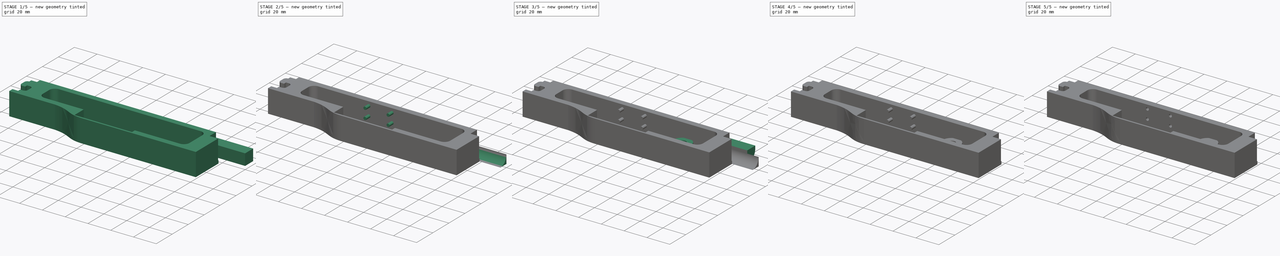
[diagram: build sequence overview — one tinted view per stage of 5, left to right]
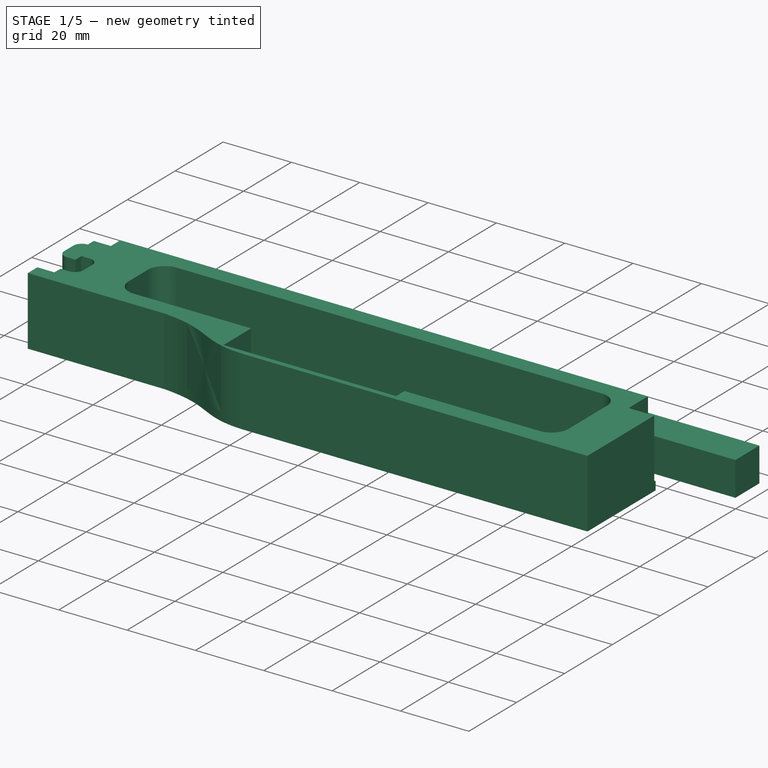
[diagram: stage 1 of 5 — iso view after this stage's code; geometry added in this stage tinted green]
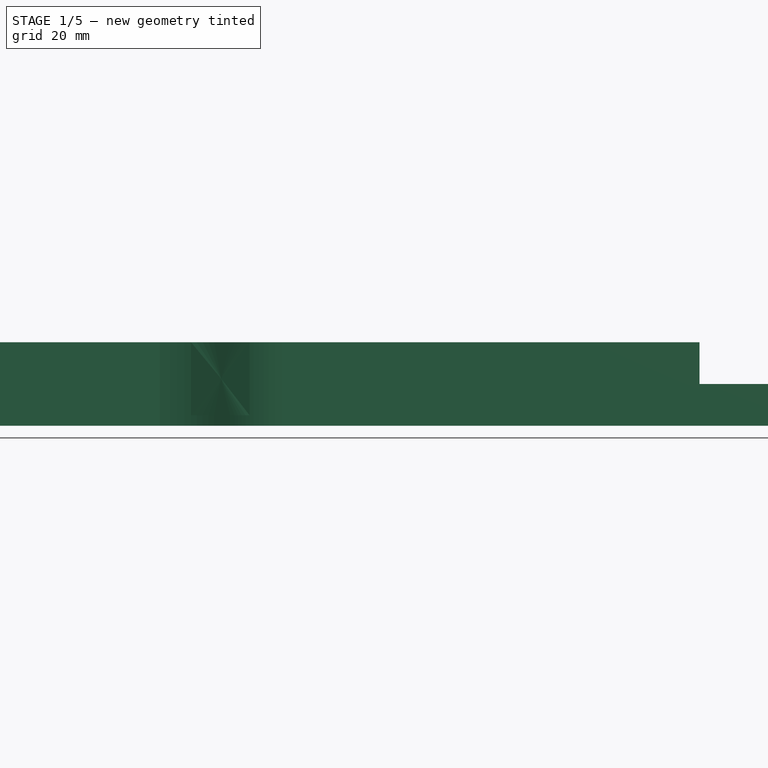
[diagram: stage 1 of 5 — front view after this stage's code; geometry added in this stage tinted green]
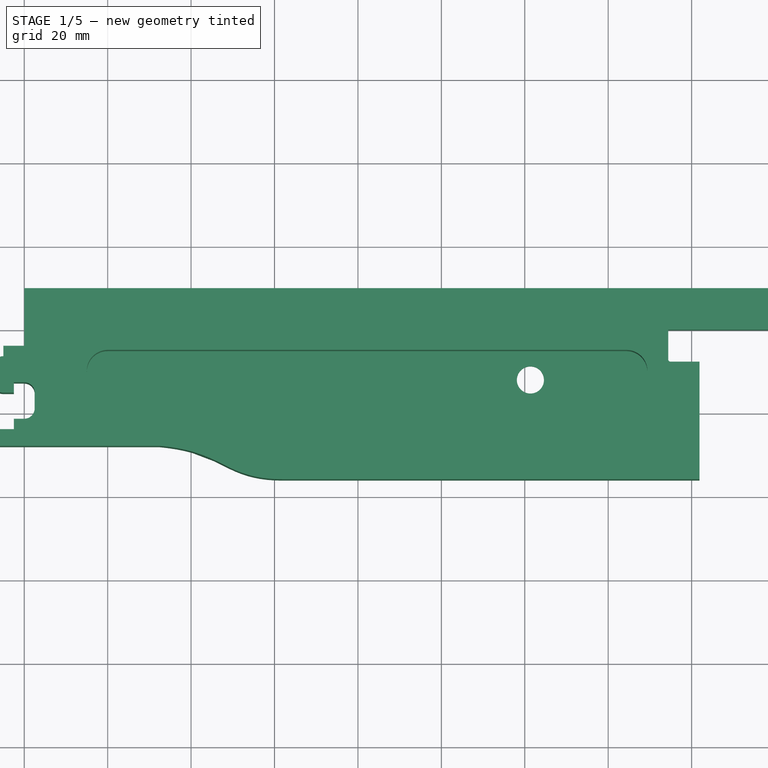
[diagram: stage 1 of 5 — top view after this stage's code; geometry added in this stage tinted green]
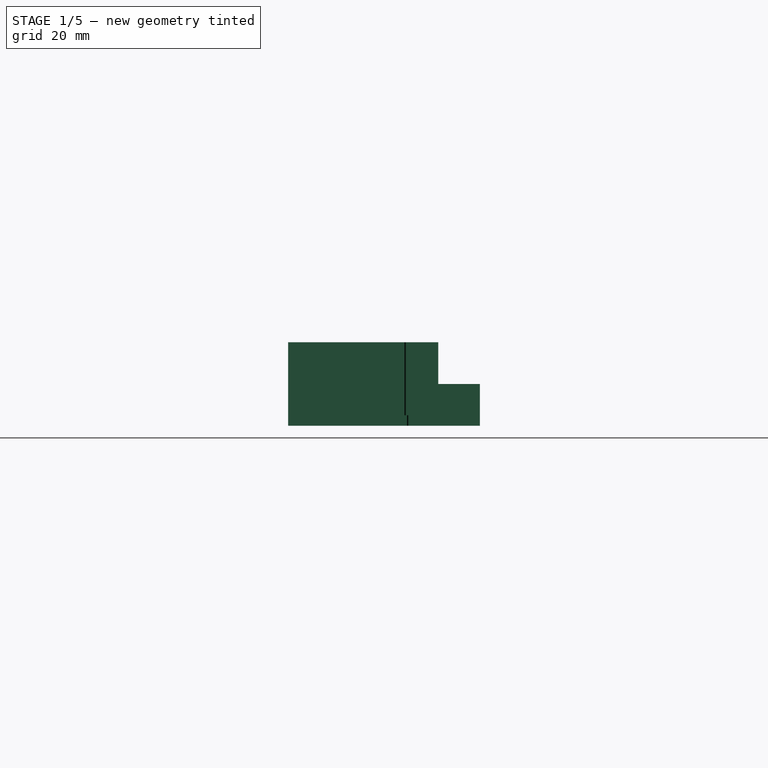
[diagram: stage 1 of 5 — right view after this stage's code; geometry added in this stage tinted green]
FCSTD DOCUMENT  (FreeCAD 0.19R0.19.2)
Label: v0_24
License: All rights reserved
LicenseURL: http://en.wikipedia.org/wiki/All_rights_reserved
objects: Sketcher::SketchObject×6, Part::Cut×6, Part::Extrusion×5, Part::Box×4, Part::Fillet×2, Part::MultiFuse×2, Part::Revolution×1
note: 26 computed .brp shape members not serialized (recipe doc carries the construction recipe); baked Part::Feature solids carry a one-line shape summary decoded from their .brp

FEATURE [Sketcher::SketchObject] Sketch
  FullyConstrained = true
  sketch-geometry (25):
    g0: LineSegment StartX=0 StartY=0 StartZ=0 EndX=154.4 EndY=0 EndZ=0
    g1: Circle CenterX=121.35 CenterY=-11.9 CenterZ=0 NormalX=0 NormalY=0 NormalZ=1 AngleXU=0 Radius=3.25
    g2: LineSegment StartX=154.4 StartY=0 StartZ=0 EndX=154.4 EndY=-7.6 EndZ=0
    g3: LineSegment StartX=154.9 StartY=-8.1 StartZ=0 EndX=161.9 EndY=-8.1 EndZ=0
    g4: ArcOfCircle CenterX=154.9 CenterY=-7.6 CenterZ=0 NormalX=0 NormalY=0 NormalZ=1 AngleXU=0 Radius=0.5 StartAngle=3.14159 EndAngle=4.71239
    g5: LineSegment StartX=161.9 StartY=-8.1 StartZ=0 EndX=161.9 EndY=-34.2 EndZ=0
    g6: LineSegment StartX=0 StartY=0 StartZ=0 EndX=0 EndY=-3.1 EndZ=0
    g7: LineSegment StartX=-7.5 StartY=-23.1 StartZ=0 EndX=-7.5 EndY=-26.2 EndZ=0
    g8: LineSegment StartX=-5 StartY=-3.1 StartZ=0 EndX=0 EndY=-3.1 EndZ=0
    g9: LineSegment StartX=-5 StartY=-3.1 StartZ=0 EndX=-5 EndY=-5.6 EndZ=0
    g10: LineSegment StartX=-7.5 StartY=-8.1 StartZ=0 EndX=-7.5 EndY=-11.85 EndZ=0
    g11: ArcOfCircle CenterX=-5 CenterY=-8.1 CenterZ=0 NormalX=0 NormalY=0 NormalZ=1 AngleXU=0 Radius=2.5 StartAngle=1.5708 EndAngle=3.14159
    g12: LineSegment StartX=-5 StartY=-14.35 StartZ=0 EndX=-2.5 EndY=-14.35 EndZ=0
    g13: ArcOfCircle CenterX=-5 CenterY=-11.85 CenterZ=0 NormalX=0 NormalY=0 NormalZ=1 AngleXU=0 Radius=2.5 StartAngle=3.14159 EndAngle=4.71239
    g14: LineSegment StartX=-2.5 StartY=-14.35 StartZ=0 EndX=-2.5 EndY=-11.85 EndZ=0
    g15: LineSegment StartX=-2.5 StartY=-11.85 StartZ=0 EndX=1.492e-13 EndY=-11.85 EndZ=0
    g16: ArcOfCircle CenterX=1.492e-13 CenterY=-14.35 CenterZ=0 NormalX=0 NormalY=0 NormalZ=1 AngleXU=0 Radius=2.5 StartAngle=8e-16 EndAngle=1.5708
    g17: LineSegment StartX=2.5 StartY=-14.35 StartZ=0 EndX=2.5 EndY=-18.1 EndZ=0
    g18: ArcOfCircle CenterX=1.474e-13 CenterY=-18.1 CenterZ=0 NormalX=0 NormalY=0 NormalZ=1 AngleXU=0 Radius=2.5 StartAngle=4.71239 EndAngle=6.28319
    g19: LineSegment StartX=-2.5 StartY=-20.6 StartZ=0 EndX=1.47e-13 EndY=-20.6 EndZ=0
    g20: LineSegment StartX=-2.5 StartY=-20.6 StartZ=0 EndX=-2.5 EndY=-23.1 EndZ=0
    g21: LineSegment StartX=-7.5 StartY=-23.1 StartZ=0 EndX=-2.5 EndY=-23.1 EndZ=0
    g22: LineSegment StartX=32.5209 StartY=-26.2 StartZ=0 EndX=-7.5 EndY=-26.2 EndZ=0
    g23: BSplineCurve PolesCount=5 KnotsCount=3 Degree=3 IsPeriodic=0
    g24: LineSegment StartX=61.85 StartY=-34.2 StartZ=0 EndX=161.9 EndY=-34.2 EndZ=0
  constraints (59):
    c: PointOnObject(g0,g-2)
    c: Horizontal(g0)
    c: Distance(g0) = 154.4
    c: DistanceY(g-1,g0) = 0
    c: Block(g1)
    c: Vertical(g2)
    c: Distance(g2) = 7.6
    c: Coincident(g2,g0)
    c: Horizontal(g3)
    c: Tangent(g3,g4)
    c: Tangent(g3,g4,g3) = -1.5708
    c: Block(g4)
    c: Block(g3)
    c: Vertical(g5)
    c: Distance(g5) = 26.1
    c: Block(g5)
    c: Vertical(g6)
    c: Distance(g6) = 3.1
    c: Coincident(g6,g0)
    c: Vertical(g7)
    c: Distance(g7) = 3.1
    c: Horizontal(g8)
    c: Vertical(g9)
    c: Coincident(g9,g8)
    c: Vertical(g10)
    c: Coincident(g11,g9)
    c: Block(g11)
    c: Coincident(g10,g11)
    c: Horizontal(g12)
    c: Coincident(g13,g10)
    c: Block(g13)
    c: Block(g12)
    c: Vertical(g14)
    c: Coincident(g14,g12)
    c: Horizontal(g15)
    c: Coincident(g15,g14)
    c: Coincident(g16,g15)
    c: Vertical(g17)
    c: Block(g16)
    c: Coincident(g17,g16)
    c: Coincident(g18,g17)
    c: Block(g18)
    c: Horizontal(g19)
    c: Coincident(g19,g18)
    c: Vertical(g20)
    c: Coincident(g20,g19)
    c: Horizontal(g21)
    c: Coincident(g21,g20)
    c: Coincident(g21,g7)
    c: Block(g20)
    c: Block(g7)
    c: Block(g8)
    c: Horizontal(g24)
    c: Coincident(g23,g24)
    c: Horizontal(g22)
    c: Coincident(g22,g23)
    c: Block(g23)
    c: Block(g22)
    c: Block(g24)
FEATURE [Part::Extrusion] Extrude
  Base = -> Sketch
  Dir = (0,0,1)
  DirMode = 2
  FaceMakerClass = Part::FaceMakerBullseye
  LengthFwd = 2.5
  LengthRev = 0
  Solid = true
  Symmetric = false
FEATURE [Sketcher::SketchObject] Sketch001
  FullyConstrained = true
  sketch-geometry (54):
    g0: ArcOfCircle CenterX=144.4 CenterY=-10 CenterZ=0 NormalX=0 NormalY=0 NormalZ=1 AngleXU=0 Radius=5 StartAngle=0 EndAngle=1.5708
    g1: LineSegment StartX=20 StartY=-23 StartZ=0 EndX=54.35 EndY=-23 EndZ=0
    g2: ArcOfCircle CenterX=20 CenterY=-18 CenterZ=0 NormalX=0 NormalY=0 NormalZ=1 AngleXU=0 Radius=5 StartAngle=3.14159 EndAngle=4.71239
    g3: ArcOfCircle CenterX=20 CenterY=-10 CenterZ=0 NormalX=0 NormalY=0 NormalZ=1 AngleXU=0 Radius=5 StartAngle=1.5708 EndAngle=3.14159
    g4: LineSegment StartX=15 StartY=-10 StartZ=0 EndX=15 EndY=-18 EndZ=0
    g5: LineSegment StartX=32.5209 StartY=-26.2 StartZ=0 EndX=-7.49911 EndY=-26.2 EndZ=0
    g6: BSplineCurve PolesCount=5 KnotsCount=3 Degree=3 IsPeriodic=0
    g7: LineSegment StartX=61.85 StartY=-34.2 StartZ=0 EndX=161.9 EndY=-34.2 EndZ=0
    g8: LineSegment StartX=161.9 StartY=-34.2 StartZ=0 EndX=161.9 EndY=-8.1 EndZ=0
    g9: ArcOfCircle CenterX=144.4 CenterY=-24.1 CenterZ=0 NormalX=0 NormalY=0 NormalZ=1 AngleXU=0 Radius=5 StartAngle=4.71239 EndAngle=6.28319
    g10: LineSegment StartX=104.85 StartY=-29.1 StartZ=0 EndX=144.4 EndY=-29.1 EndZ=0
    g11: LineSegment StartX=0 StartY=0 StartZ=0 EndX=0 EndY=-3.1 EndZ=0
    g12: LineSegment StartX=-7.49911 StartY=-23.1 StartZ=0 EndX=-7.49911 EndY=-26.2 EndZ=0
    g13: LineSegment StartX=-4.99911 StartY=-3.1 StartZ=0 EndX=0.000891 EndY=-3.1 EndZ=0
    g14: LineSegment StartX=-4.99911 StartY=-3.1 StartZ=0 EndX=-4.99911 EndY=-5.6 EndZ=0
    g15: LineSegment StartX=-7.49911 StartY=-8.1 StartZ=0 EndX=-7.49911 EndY=-11.85 EndZ=0
    g16: ArcOfCircle CenterX=-4.99911 CenterY=-8.1 CenterZ=0 NormalX=0 NormalY=0 NormalZ=1 AngleXU=0 Radius=2.5 StartAngle=1.5708 EndAngle=3.14159
    g17: LineSegment StartX=-4.99911 StartY=-14.35 StartZ=0 EndX=-2.49911 EndY=-14.35 EndZ=0
    g18: ArcOfCircle CenterX=-4.99911 CenterY=-11.85 CenterZ=0 NormalX=0 NormalY=0 NormalZ=1 AngleXU=0 Radius=2.5 StartAngle=3.14159 EndAngle=4.71239
    g19: LineSegment StartX=-2.49911 StartY=-14.35 StartZ=0 EndX=-2.49911 EndY=-11.85 EndZ=0
    g20: LineSegment StartX=-2.49911 StartY=-11.85 StartZ=0 EndX=0.000891 EndY=-11.85 EndZ=0
    g21: ArcOfCircle CenterX=0.000891 CenterY=-14.35 CenterZ=0 NormalX=0 NormalY=0 NormalZ=1 AngleXU=0 Radius=2.5 StartAngle=8e-16 EndAngle=1.5708
    g22: LineSegment StartX=2.50089 StartY=-14.35 StartZ=0 EndX=2.50089 EndY=-18.1 EndZ=0
    g23: ArcOfCircle CenterX=0.000891 CenterY=-18.1 CenterZ=0 NormalX=0 NormalY=0 NormalZ=1 AngleXU=0 Radius=2.5 StartAngle=4.71239 EndAngle=6.28319
    g24: LineSegment StartX=-2.49911 StartY=-20.6 StartZ=0 EndX=0.000891 EndY=-20.6 EndZ=0
    g25: LineSegment StartX=-2.49911 StartY=-20.6 StartZ=0 EndX=-2.49911 EndY=-23.1 EndZ=0
    g26: LineSegment StartX=-7.49911 StartY=-23.1 StartZ=0 EndX=-2.49911 EndY=-23.1 EndZ=0
    g27: LineSegment StartX=20 StartY=-5 StartZ=0 EndX=54.35 EndY=-5 EndZ=0
    g28: LineSegment StartX=60.35 StartY=-32.2 StartZ=0 EndX=98.85 EndY=-32.2 EndZ=0
    g29: LineSegment StartX=104.85 StartY=-29.1 StartZ=0 EndX=104.85 EndY=-29.2 EndZ=0
    g30: LineSegment StartX=54.35 StartY=-23 StartZ=0 EndX=54.35 EndY=-29.2 EndZ=0
    g31: Circle CenterX=104.85 CenterY=-29.2 CenterZ=0 NormalX=0 NormalY=0 NormalZ=1 AngleXU=0 Radius=1
    g32: Circle CenterX=104.85 CenterY=-32.2 CenterZ=0 NormalX=0 NormalY=0 NormalZ=1 AngleXU=0 Radius=1
    g33: Circle CenterX=98.85 CenterY=-32.2 CenterZ=0 NormalX=0 NormalY=0 NormalZ=1 AngleXU=0 Radius=1
    g34: BSplineCurve PolesCount=3 KnotsCount=2 Degree=2 IsPeriodic=0
    g35: GeomPoint X=104.85 Y=-29.2 Z=0
    g36: GeomPoint X=98.85 Y=-32.2 Z=0
    g37: Circle CenterX=54.35 CenterY=-29.2 CenterZ=0 NormalX=0 NormalY=0 NormalZ=1 AngleXU=0 Radius=1
    g38: Circle CenterX=54.35 CenterY=-32.2 CenterZ=0 NormalX=0 NormalY=0 NormalZ=1 AngleXU=0 Radius=1
    g39: Circle CenterX=60.35 CenterY=-32.2 CenterZ=0 NormalX=0 NormalY=0 NormalZ=1 AngleXU=0 Radius=1
    g40: BSplineCurve PolesCount=3 KnotsCount=2 Degree=2 IsPeriodic=0
    g41: GeomPoint X=54.35 Y=-29.2 Z=0
    g42: GeomPoint X=60.35 Y=-32.2 Z=0
    g43: LineSegment StartX=104.85 StartY=-5 StartZ=0 EndX=144.4 EndY=-5 EndZ=0
    g44: LineSegment StartX=54.35 StartY=-5 StartZ=0 EndX=54.35 EndY=-4.1 EndZ=0
    g45: ArcOfCircle CenterX=56.35 CenterY=-4.1 CenterZ=0 NormalX=0 NormalY=0 NormalZ=1 AngleXU=0 Radius=2 StartAngle=1.5708 EndAngle=3.14159
    g46: LineSegment StartX=104.85 StartY=-5 StartZ=0 EndX=104.85 EndY=-4.1 EndZ=0
    g47: ArcOfCircle CenterX=102.85 CenterY=-4.1 CenterZ=0 NormalX=0 NormalY=0 NormalZ=1 AngleXU=0 Radius=2 StartAngle=1e-16 EndAngle=1.5708
    g48: LineSegment StartX=56.35 StartY=-2.1 StartZ=0 EndX=102.85 EndY=-2.1 EndZ=0
    g49: LineSegment StartX=0 StartY=0 StartZ=0 EndX=154.4 EndY=0 EndZ=0
    g50: LineSegment StartX=149.4 StartY=-10 StartZ=0 EndX=149.4 EndY=-24.1 EndZ=0
    g51: LineSegment StartX=154.4 StartY=0 StartZ=0 EndX=154.4 EndY=-7.6 EndZ=0
    g52: LineSegment StartX=154.9 StartY=-8.1 StartZ=0 EndX=161.9 EndY=-8.1 EndZ=0
    g53: ArcOfCircle CenterX=154.9 CenterY=-7.6 CenterZ=0 NormalX=0 NormalY=0 NormalZ=1 AngleXU=0 Radius=0.5 StartAngle=3.14159 EndAngle=4.71239
  constraints (123):
    c: PointOnObject(g11,g-2)
    c: DistanceY(g-1,g11) = 0
    c: Block(g0)
    c: Horizontal(g1)
    c: Block(g2)
    c: Block(g1)
    c: Block(g3)
    c: Coincident(g4,g3)
    c: Coincident(g4,g2)
    c: Horizontal(g7)
    c: Coincident(g6,g7)
    c: Horizontal(g5)
    c: Coincident(g5,g6)
    c: Block(g6)
    c: Vertical(g8)
    c: Coincident(g8,g7)
    c: Block(g9)
    c: Horizontal(g10)
    c: Coincident(g10,g9)
    c: Block(g10)
    c: Distance(g5) = 40.02
    c: Vertical(g11)
    c: Distance(g11) = 3.1
    c: Vertical(g12)
    c: Distance(g12) = 3.1
    c: Coincident(g12,g5)
    c: Horizontal(g13)
    c: Vertical(g14)
    c: Coincident(g14,g13)
    c: Vertical(g15)
    c: Coincident(g16,g14)
    c: Block(g16)
    c: Horizontal(g17)
    c: Block(g18)
    c: Block(g17)
    c: Vertical(g19)
    c: Coincident(g19,g17)
    c: Horizontal(g20)
    c: Coincident(g20,g19)
    c: Coincident(g21,g20)
    c: Vertical(g22)
    c: Block(g21)
    c: Block(g23)
    c: Horizontal(g24)
    c: Coincident(g24,g23)
    c: Vertical(g25)
    c: Coincident(g25,g24)
    c: Horizontal(g26)
    c: Coincident(g26,g25)
    c: Coincident(g26,g12)
    c: Equal(g13,g26)
    c: Equal(g25,g14)
    c: Block(g24)
    c: Block(g15)
    c: Block(g22)
    c: Block(g26)
    c: Block(g25)
    c: Horizontal(g27)
    c: Coincident(g27,g3)
    c: Horizontal(g28)
    c: Distance(g28) = 38.5
    c: Vertical(g29)
    c: Distance(g29) = 0.1
    c: Coincident(g29,g10)
    c: Vertical(g30)
    c: Distance(g30) = 6.2
    c: Coincident(g30,g1)
    c: Coincident(g34,g29)
    c: Weight(g31) = 1
    c: Equal(g31,g32)
    c: Equal(g31,g33)
    c: Coincident(g34,g28)
    c: InternalAlignment(g31,g34)
    c: InternalAlignment(g32,g34)
    c: InternalAlignment(g33,g34)
    c: InternalAlignment(g35,g34)
    c: InternalAlignment(g36,g34)
    c: Block(g34)
    c: Block(g28)
    c: Weight(g37) = 1
    c: Equal(g37,g38)
    c: Equal(g37,g39)
    c: Coincident(g40,g28)
    c: InternalAlignment(g37,g40)
    c: InternalAlignment(g38,g40)
    c: InternalAlignment(g39,g40)
    c: InternalAlignment(g41,g40)
    c: InternalAlignment(g42,g40)
    c: Block(g40)
    c: Coincident(g43,g0)
    c: Distance(g43) = 39.55
    c: Vertical(g44)
    c: Distance(g44) = 0.9
    c: Distance(g27) = 34.35
    c: Block(g27)
    c: Block(g45)
    c: Block(g44)
    c: Vertical(g46)
    c: Block(g43)
    c: Distance(g46) = 0.9
    c: Coincident(g47,g46)
    c: Block(g47)
    c: Block(g46)
    c: Horizontal(g48)
    c: Coincident(g48,g45)
    c: Coincident(g48,g47)
    c: Horizontal(g49)
    c: Coincident(g49,g11)
    c: Vertical(g50)
    c: Coincident(g50,g0)
    c: Coincident(g50,g9)
    c: Block(g50)
    c: Block(g7)
    c: Block(g49)
    c: Vertical(g51)
    c: Distance(g51) = 7.6
    c: Coincident(g51,g49)
    c: Horizontal(g52)
    c: Distance(g52) = 7
    c: Coincident(g53,g51)
    c: Coincident(g53,g52)
    c: Block(g53)
    c: Block(g8)
FEATURE [Part::Extrusion] Extrude001
  Base = -> Sketch001
  Dir = (0,0,1)
  DirMode = 2
  FaceMakerClass = Part::FaceMakerBullseye
  LengthFwd = 20
  LengthRev = 0
  Solid = true
  Symmetric = false
FEATURE [Part::Box] Box003  label="Cube003"
  AttacherType = Attacher::AttachEngine3D
  Height = 10
  Length = 180
  Width = 10
FEATURE [Part::MultiFuse] Fusion
  Shapes = -> [Extrude001,Extrude]
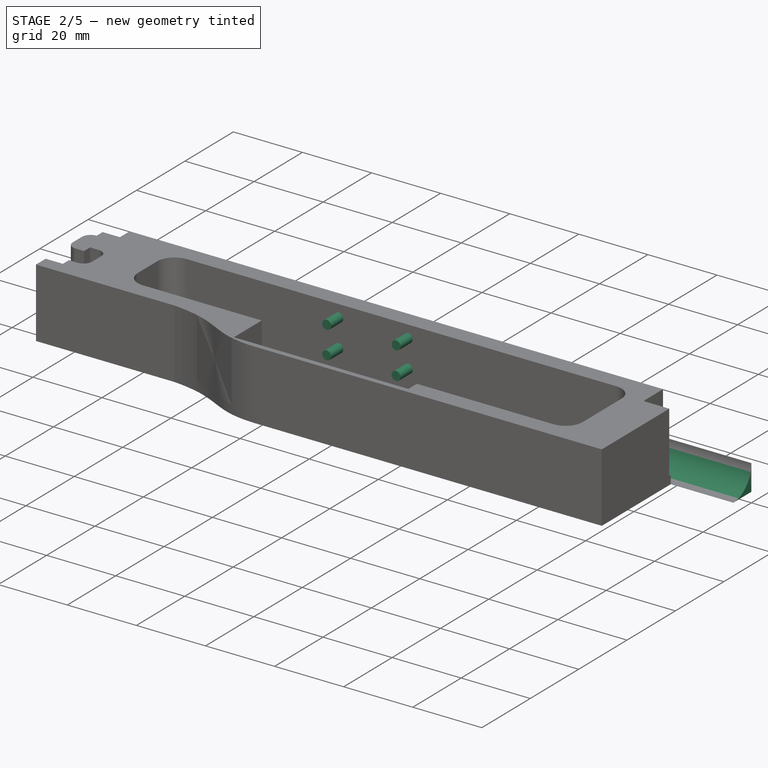
[diagram: stage 2 of 5 — iso view after this stage's code; geometry added in this stage tinted green]
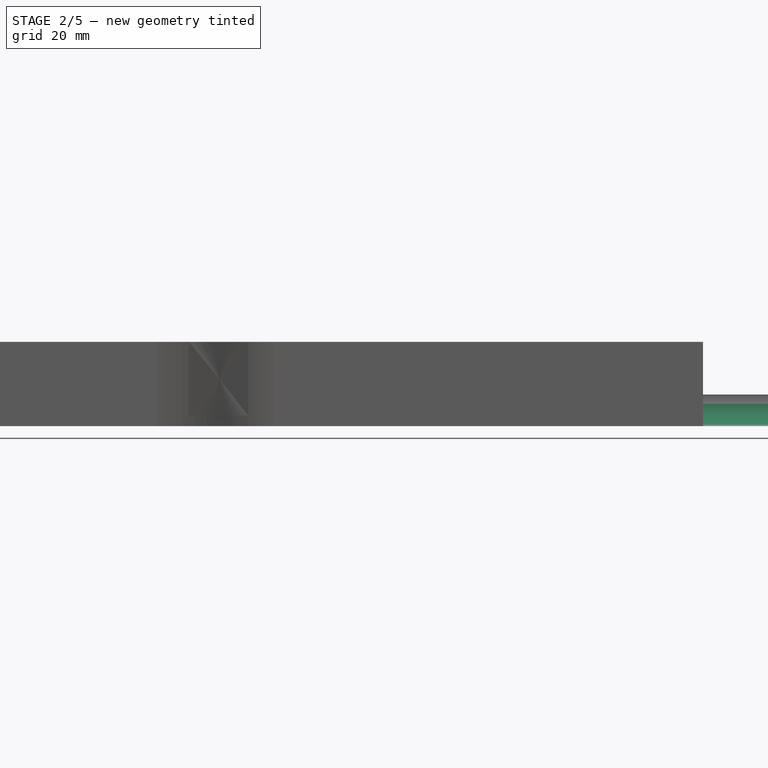
[diagram: stage 2 of 5 — front view after this stage's code; geometry added in this stage tinted green]
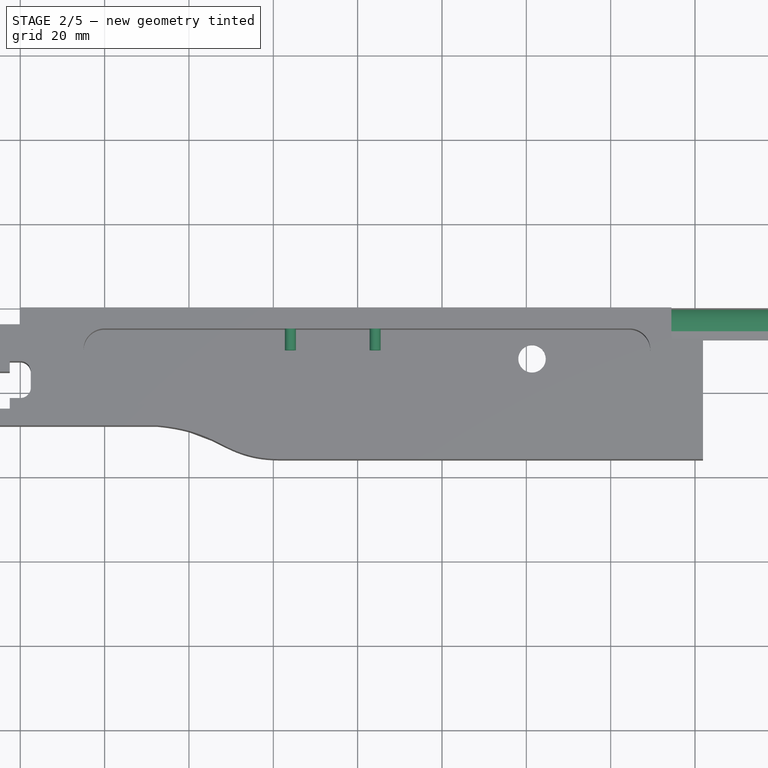
[diagram: stage 2 of 5 — top view after this stage's code; geometry added in this stage tinted green]
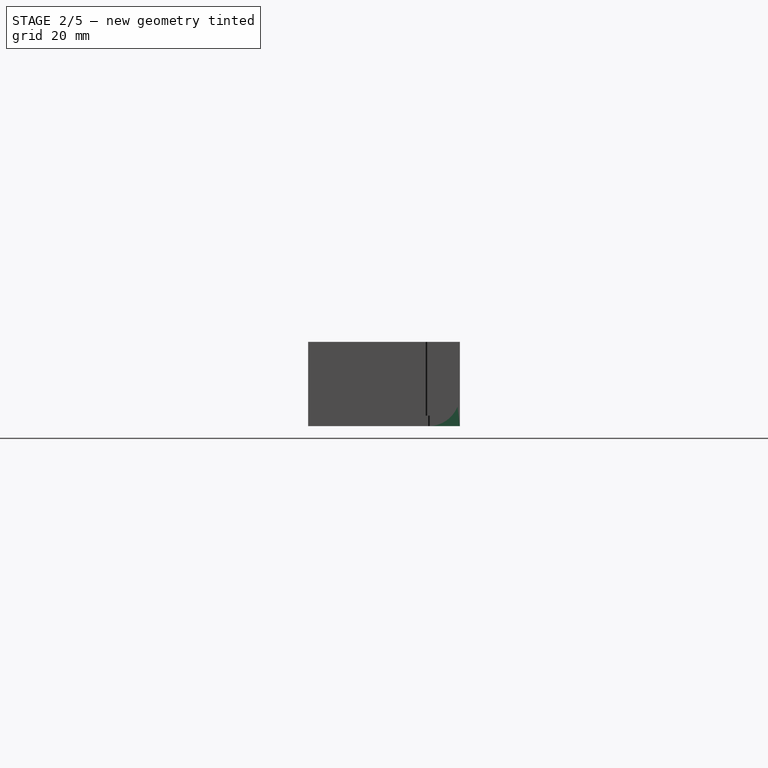
[diagram: stage 2 of 5 — right view after this stage's code; geometry added in this stage tinted green]
FEATURE [Part::Box] Box002  label="Cube002"
  AttacherType = Attacher::AttachEngine3D
  Height = 10
  Length = 180
  Width = 10
FEATURE [Part::Fillet] Fillet001
  Base = -> Box002
  Edges = 1 edges r=7.5: [Edge11]
FEATURE [Part::Extrusion] Extrude004
  Base = -> Sketch005
  Dir = (0,-1,9e-16)
  DirMode = 2
  FaceMakerClass = Part::FaceMakerBullseye
  LengthFwd = 10
  LengthRev = 0
  Solid = true
  Symmetric = false
FEATURE [Part::Cut] Cut002
  Base = -> Box003
  Placement = pos=(0,-10,0) rot=(0,0,1;0rad)
  Tool = -> Fillet001
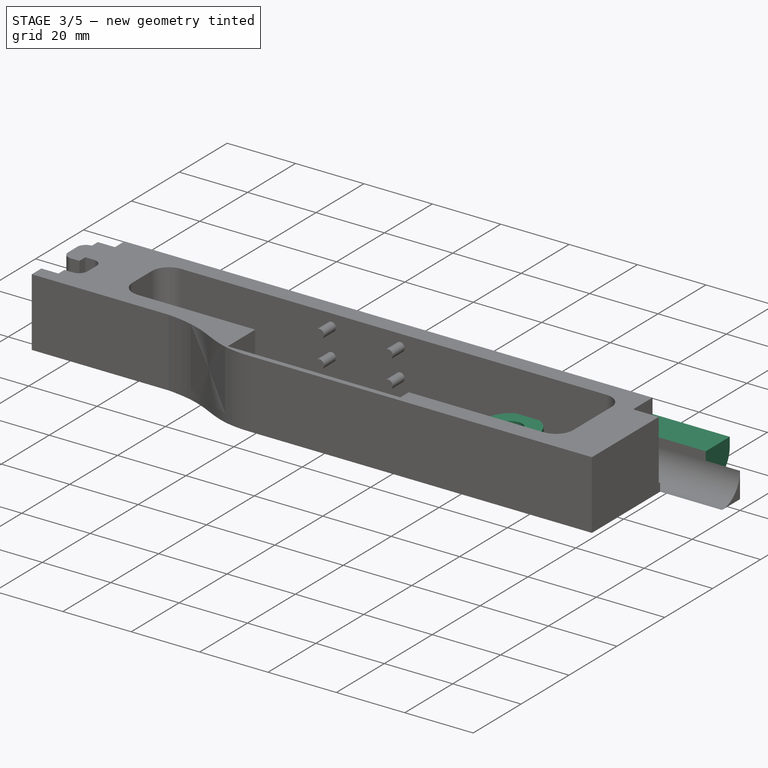
[diagram: stage 3 of 5 — iso view after this stage's code; geometry added in this stage tinted green]
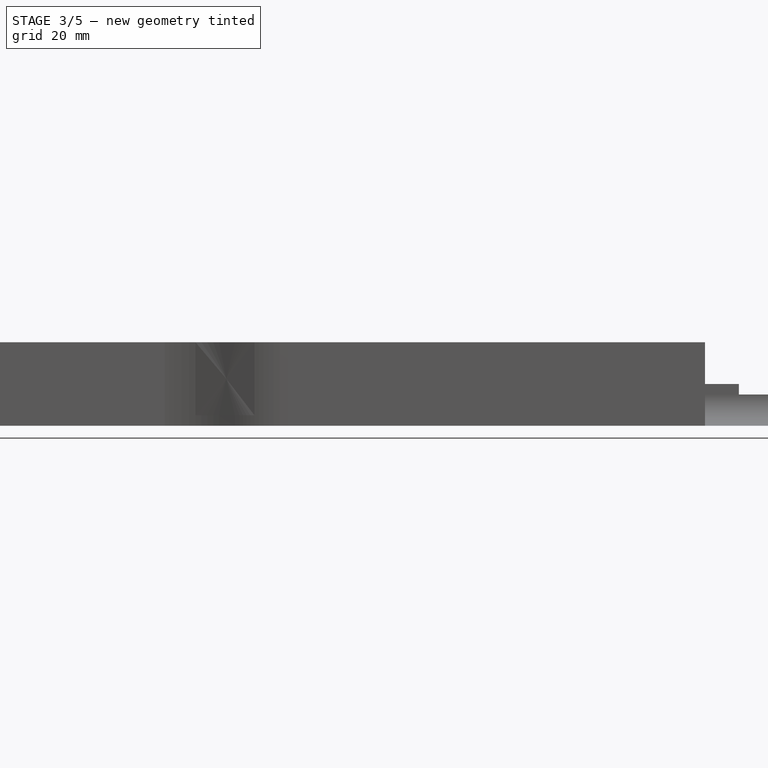
[diagram: stage 3 of 5 — front view after this stage's code; geometry added in this stage tinted green]
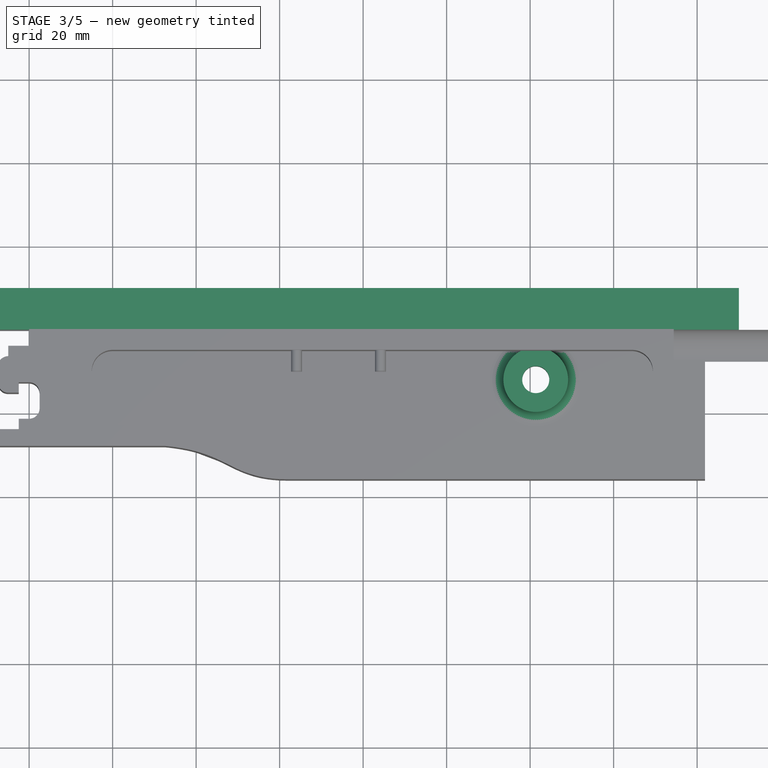
[diagram: stage 3 of 5 — top view after this stage's code; geometry added in this stage tinted green]
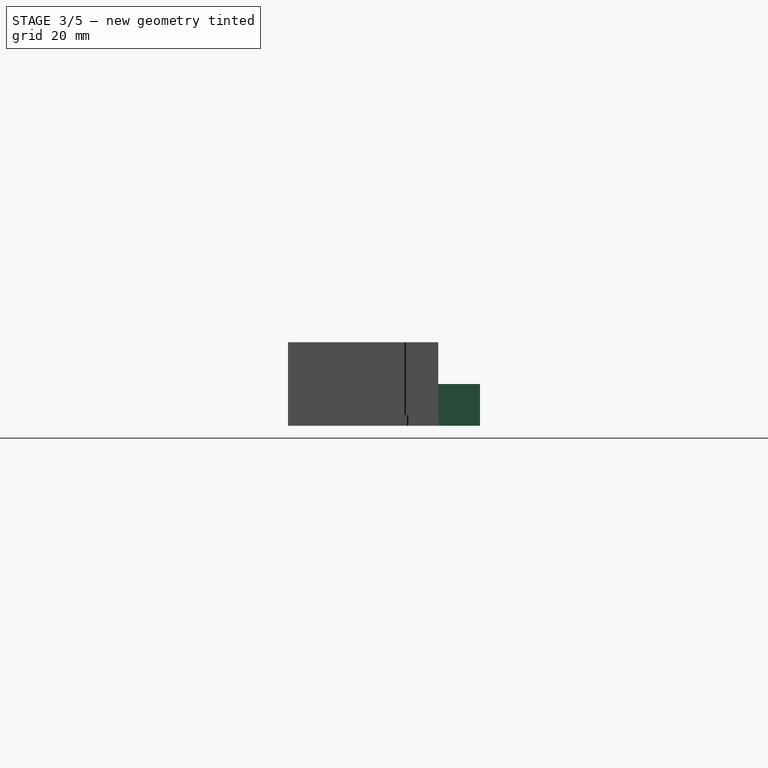
[diagram: stage 3 of 5 — right view after this stage's code; geometry added in this stage tinted green]
FEATURE [Part::Box] Box  label="Cube"
  AttacherType = Attacher::AttachEngine3D
  Height = 10
  Length = 180
  Placement = pos=(-10,0,0) rot=(0,0,1;0rad)
  Width = 10
FEATURE [Part::Fillet] Fillet
  Base = -> Box
  Edges = 1 edges r=7.5: [Edge11]
FEATURE [Part::Box] Box001  label="Cube001"
  AttacherType = Attacher::AttachEngine3D
  Height = 10
  Length = 175
  Placement = pos=(-10,0,0) rot=(0,0,1;0rad)
  Width = 10
FEATURE [Sketcher::SketchObject] Sketch002
  FullyConstrained = true
  sketch-geometry (2):
    g0: Circle CenterX=121.35 CenterY=-11.9 CenterZ=0 NormalX=0 NormalY=0 NormalZ=1 AngleXU=0 Radius=1.65
    g1: Circle CenterX=121.35 CenterY=-11.9 CenterZ=0 NormalX=0 NormalY=0 NormalZ=1 AngleXU=0 Radius=6.25
  constraints (2):
    c: Block(g0)
    c: Block(g1)
FEATURE [Sketcher::SketchObject] Sketch003
  FullyConstrained = true
  sketch-geometry (4):
    g0: Circle CenterX=121.35 CenterY=-11.9 CenterZ=0 NormalX=0 NormalY=0 NormalZ=1 AngleXU=0 Radius=1.65
    g1: Circle CenterX=121.35 CenterY=-11.9 CenterZ=0 NormalX=0 NormalY=0 NormalZ=1 AngleXU=0 Radius=9.25
    g2: LineSegment StartX=0 StartY=0 StartZ=0 EndX=0 EndY=-11.9 EndZ=0
    g3: LineSegment StartX=0 StartY=-11.9 StartZ=0 EndX=121.35 EndY=-11.9 EndZ=0
  constraints (8):
    c: Block(g0)
    c: Coincident(g1,g0)
    c: Block(g1)
    c: Vertical(g2)
    c: Coincident(g2,g-1)
    c: Horizontal(g3)
    c: Coincident(g3,g0)
    c: Coincident(g3,g2)
FEATURE [Sketcher::SketchObject] Sketch004
  FullyConstrained = true
  Placement = pos=(0,0,0) rot=(1,0,0;1.5708rad)
  sketch-geometry (9):
    g0: LineSegment StartX=3.25 StartY=8 StartZ=0 EndX=3.25 EndY=1e-06 EndZ=0
    g1: Circle CenterX=11 CenterY=2.5 CenterZ=0 NormalX=0 NormalY=0 NormalZ=1 AngleXU=0 Radius=1
    g2: Circle CenterX=7.75 CenterY=2.5 CenterZ=0 NormalX=0 NormalY=0 NormalZ=1 AngleXU=0 Radius=1
    g3: BSplineCurve PolesCount=3 KnotsCount=2 Degree=2 IsPeriodic=0
    g4: GeomPoint X=11 Y=2.5 Z=0
    g5: GeomPoint X=7.75 Y=8 Z=0
    g6: LineSegment StartX=11 StartY=2.5 StartZ=0 EndX=11 EndY=1e-06 EndZ=0
    g7: LineSegment StartX=3.25 StartY=1e-06 StartZ=0 EndX=11 EndY=1e-06 EndZ=0
    g8: LineSegment StartX=3.25 StartY=8 StartZ=0 EndX=7.75 EndY=8 EndZ=0
  constraints (18):
    c: Vertical(g0)
    c: InternalAlignment(g1,g3)
    c: InternalAlignment(g2,g3)
    c: InternalAlignment(g4,g3)
    c: InternalAlignment(g5,g3)
    c: Block(g0)
    c: Vertical(g6)
    c: Horizontal(g7)
    c: Coincident(g7,g0)
    c: Coincident(g7,g6)
    c: Distance(g7) = 7.75
    c: Coincident(g3,g6)
    c: Distance(g6) = 2.5
    c: Horizontal(g8)
    c: Distance(g8) = 4.5
    c: Coincident(g8,g0)
    c: Coincident(g3,g8)
    c: Block(g3)
FEATURE [Part::Revolution] Revolve
  Angle = 360
  Axis = (0,0,1)
  Base = (0,0,0)
  FaceMakerClass = Part::FaceMakerBullseye
  Placement = pos=(121.35,-11.9,0) rot=(0,0,1;0rad)
  Solid = true
  Source = -> Sketch004
  Symmetric = false
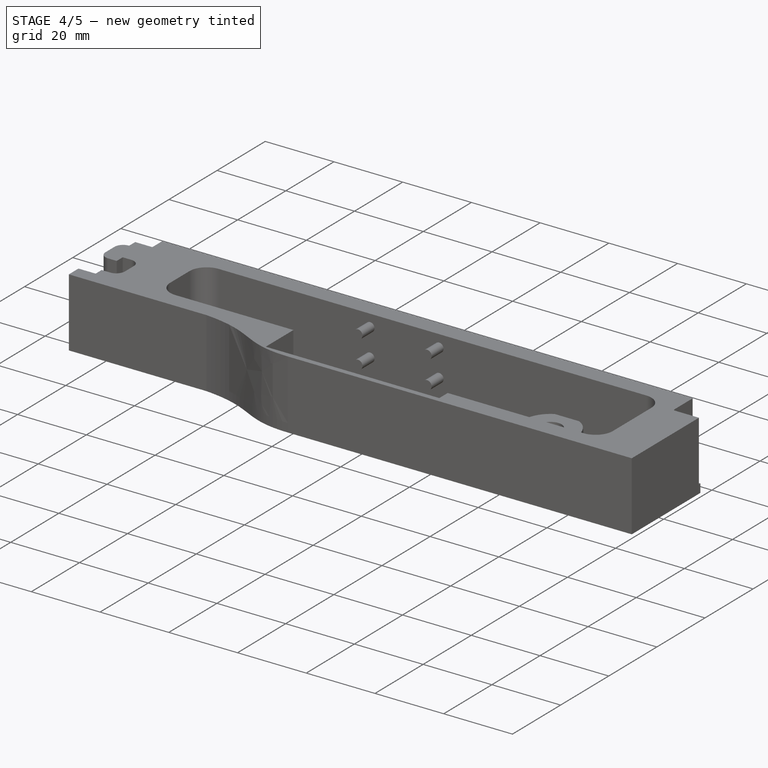
[diagram: stage 4 of 5 — iso view after this stage's code; geometry added in this stage tinted green]
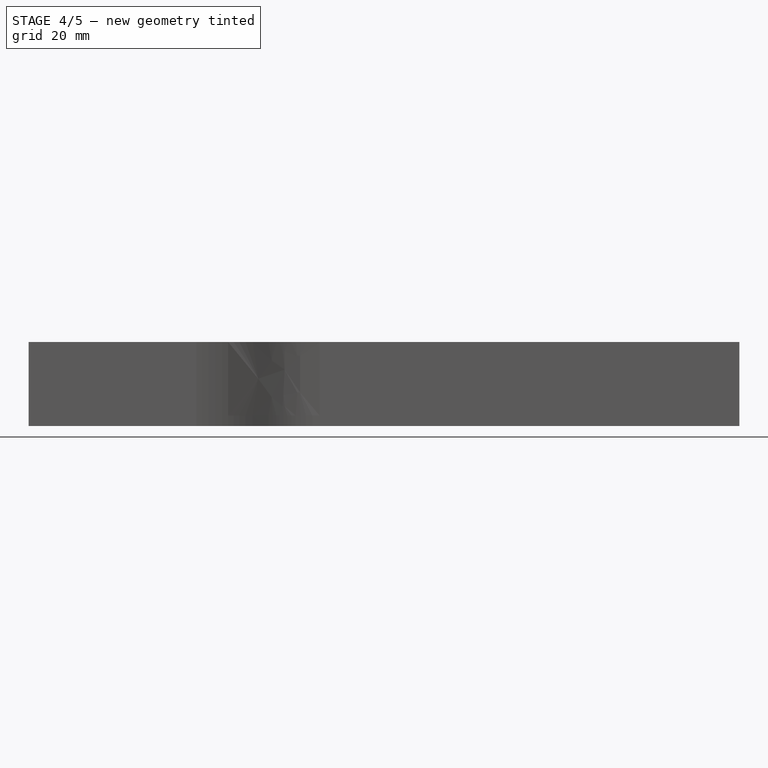
[diagram: stage 4 of 5 — front view after this stage's code; geometry added in this stage tinted green]
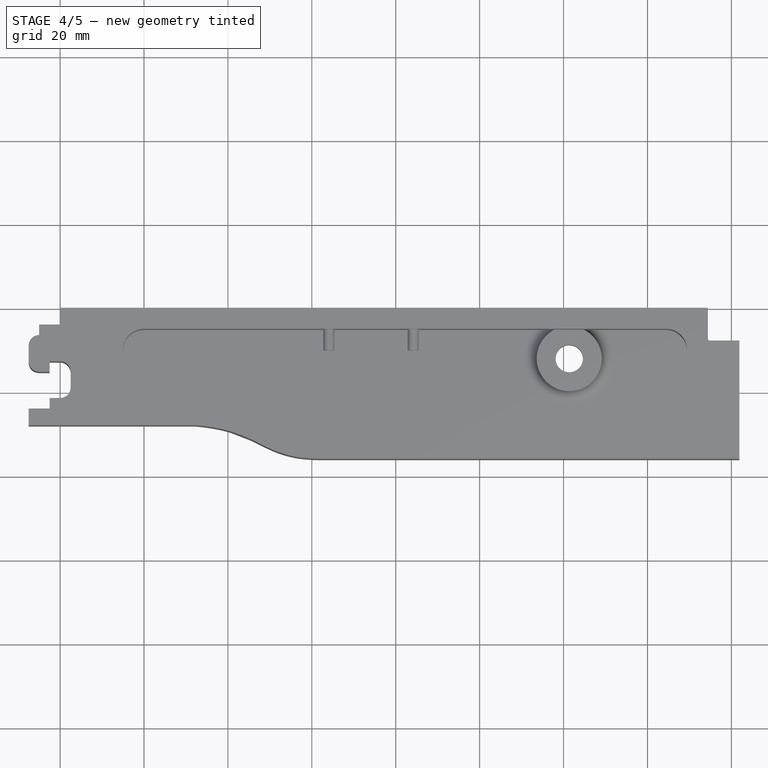
[diagram: stage 4 of 5 — top view after this stage's code; geometry added in this stage tinted green]
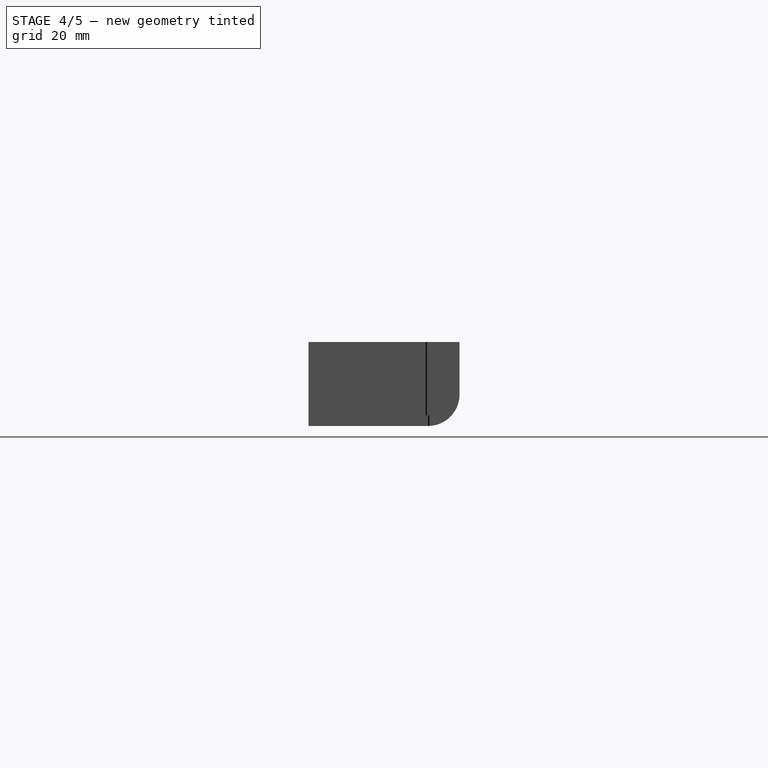
[diagram: stage 4 of 5 — right view after this stage's code; geometry added in this stage tinted green]
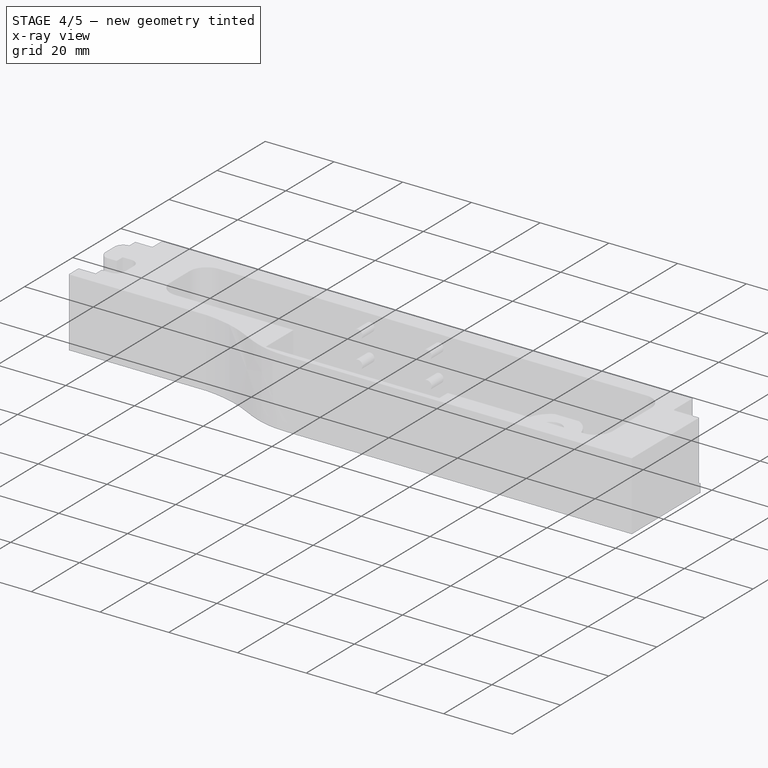
[diagram: stage 4 of 5 — x-ray composite at the iso view; earlier geometry ghosted, this stage's added geometry solid]
FEATURE [Part::Cut] Cut
  Base = -> Box001
  Placement = pos=(0,-10,0) rot=(0,0,1;0rad)
  Tool = -> Fillet
FEATURE [Part::Cut] Cut001
  Base = -> Fusion
  Tool = -> Cut
FEATURE [Part::MultiFuse] Fusion001
  Shapes = -> [Revolve,Cut001]
FEATURE [Part::Cut] Cut003
  Base = -> Fusion001
  Tool = -> Cut002
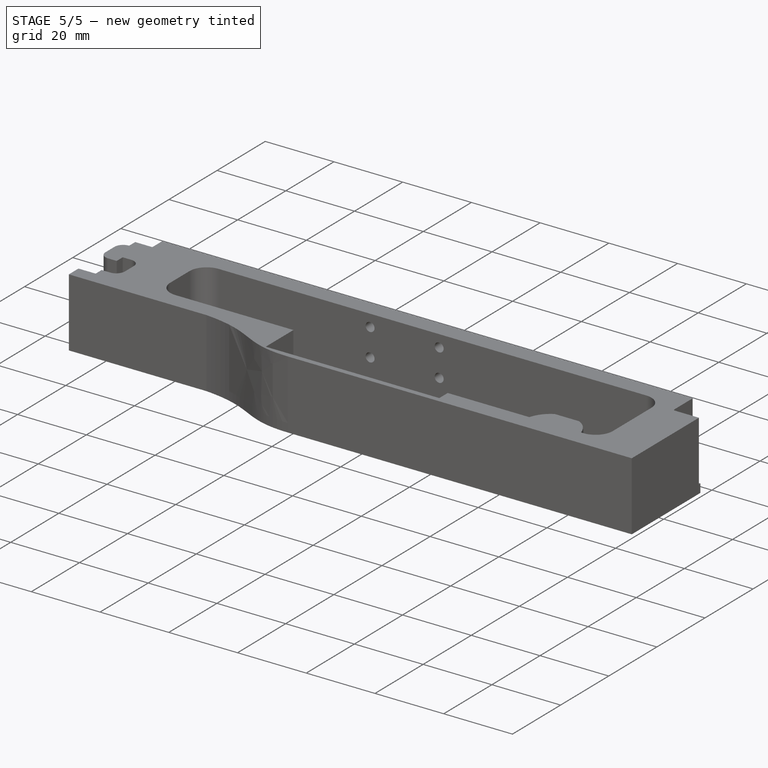
[diagram: stage 5 of 5 — iso view after this stage's code; geometry added in this stage tinted green]
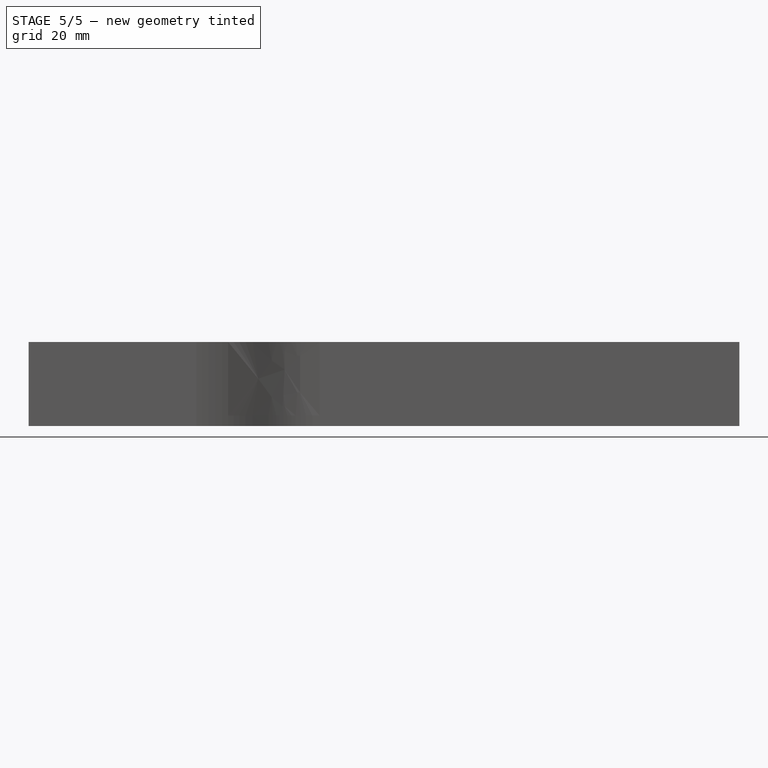
[diagram: stage 5 of 5 — front view after this stage's code; geometry added in this stage tinted green]
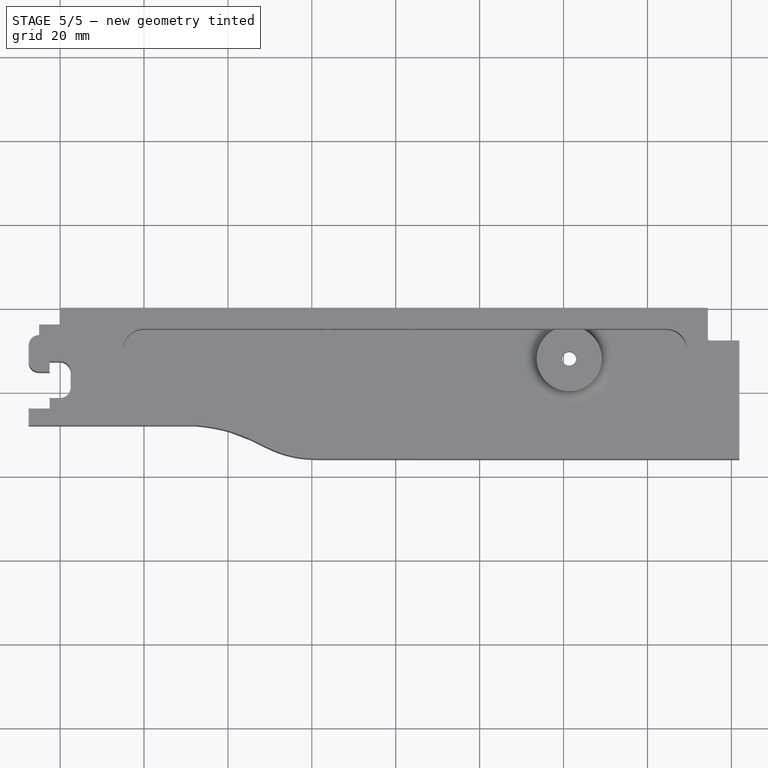
[diagram: stage 5 of 5 — top view after this stage's code; geometry added in this stage tinted green]
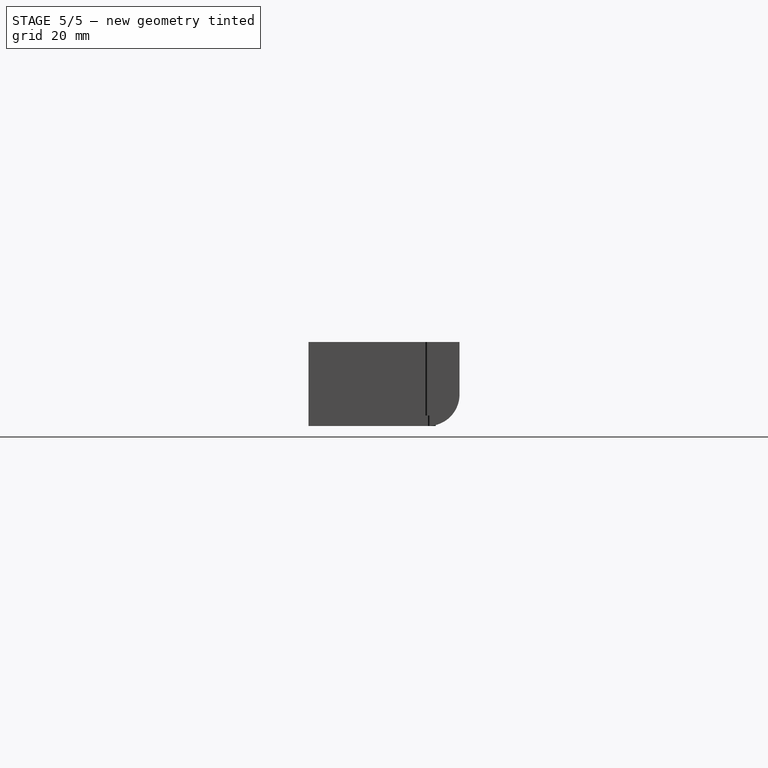
[diagram: stage 5 of 5 — right view after this stage's code; geometry added in this stage tinted green]
FEATURE [Part::Extrusion] Extrude002
  Base = -> Sketch002
  Dir = (0,0,1)
  DirMode = 2
  FaceMakerClass = Part::FaceMakerBullseye
  LengthFwd = 8
  LengthRev = 0
  Solid = true
  Symmetric = false
FEATURE [Sketcher::SketchObject] Sketch005
  FullyConstrained = true
  Placement = pos=(0,0,0) rot=(1,0,0;1.5708rad)
  sketch-geometry (4):
    g0: Circle CenterX=64.05 CenterY=8.5 CenterZ=0 NormalX=0 NormalY=0 NormalZ=1 AngleXU=0 Radius=1.3
    g1: Circle CenterX=84.15 CenterY=8.5 CenterZ=0 NormalX=0 NormalY=0 NormalZ=1 AngleXU=0 Radius=1.3
    g2: Circle CenterX=84.15 CenterY=16.5 CenterZ=0 NormalX=0 NormalY=0 NormalZ=1 AngleXU=0 Radius=1.3
    g3: Circle CenterX=64.05 CenterY=16.5 CenterZ=0 NormalX=0 NormalY=0 NormalZ=1 AngleXU=0 Radius=1.3
  constraints (4):
    c: Block(g0)
    c: Block(g3)
    c: Block(g2)
    c: Block(g1)
FEATURE [Part::Extrusion] Extrude003
  Base = -> Sketch005
  Dir = (0,-1,9e-16)
  DirMode = 2
  FaceMakerClass = Part::FaceMakerBullseye
  LengthFwd = 10
  LengthRev = 0
  Solid = true
  Symmetric = false
FEATURE [Part::Cut] Cut004
  Base = -> Cut003
  Tool = -> Extrude004
FEATURE [Part::Cut] Cut005
  Base = -> Cut004
  Tool = -> Extrude003
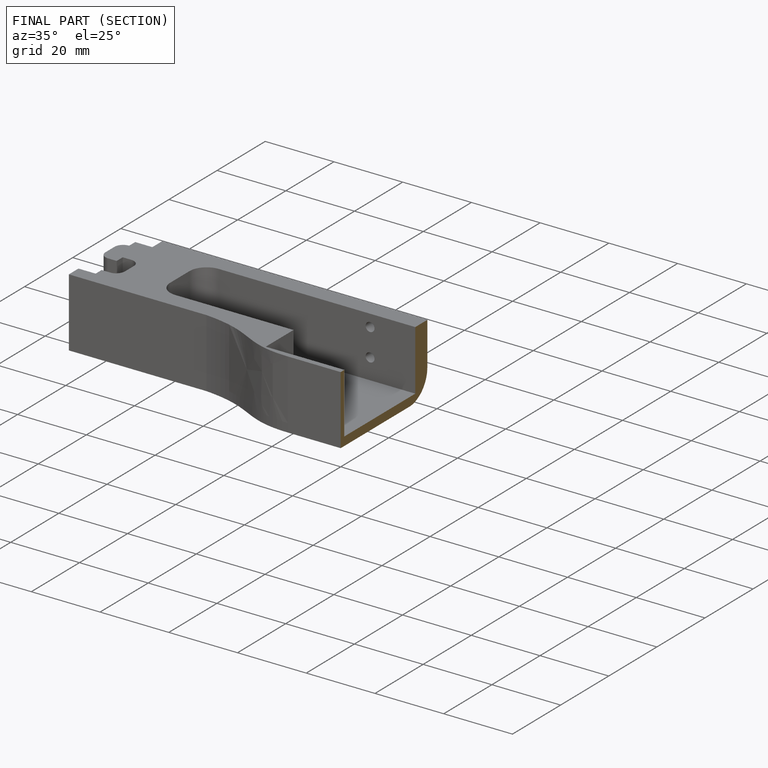
[diagram: finished part — half-section view (interior)]
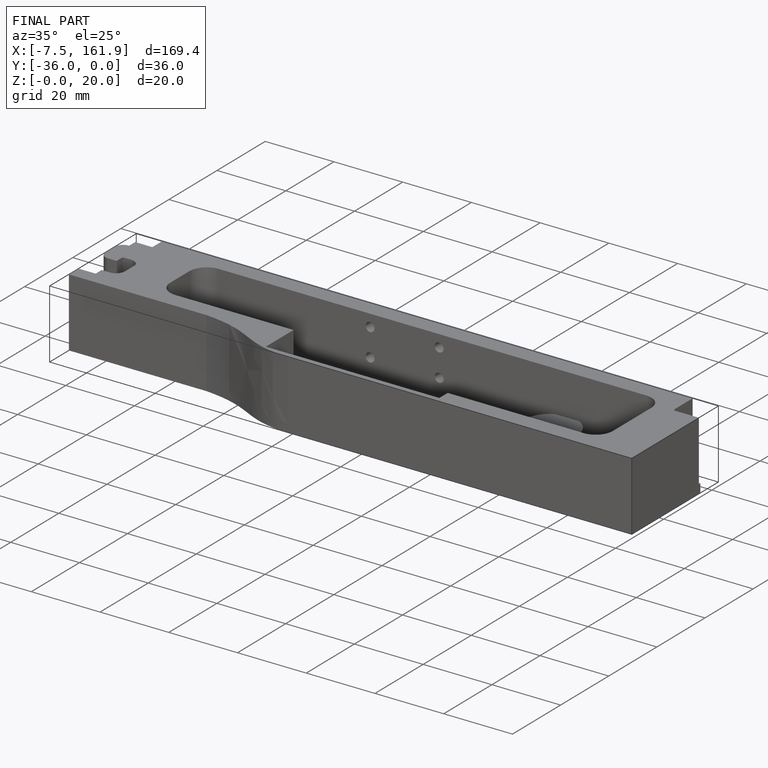
[diagram: finished part — iso view with bounding-box wireframe]
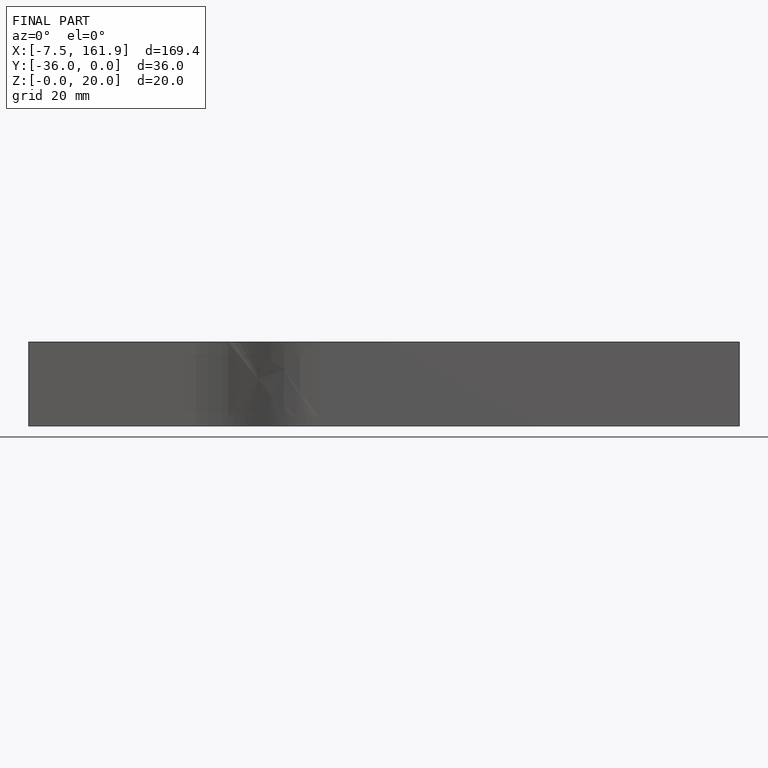
[diagram: finished part — front view with bounding-box wireframe]
